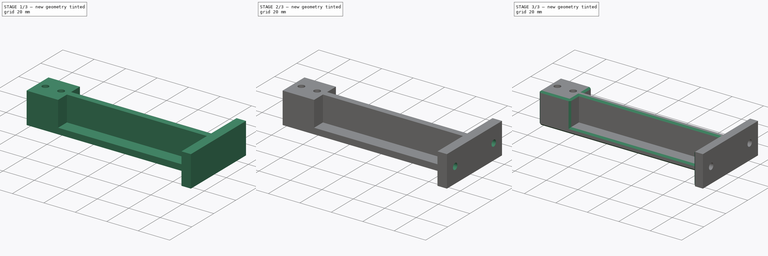
[diagram: build sequence overview — one tinted view per stage of 3, left to right]
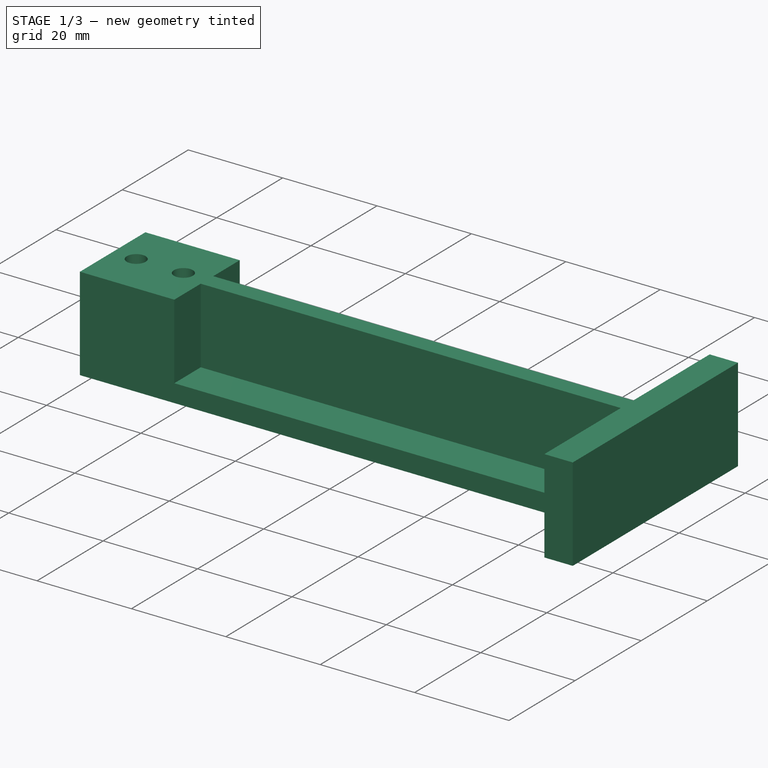
[diagram: stage 1 of 3 — iso view after this stage's code; geometry added in this stage tinted green]
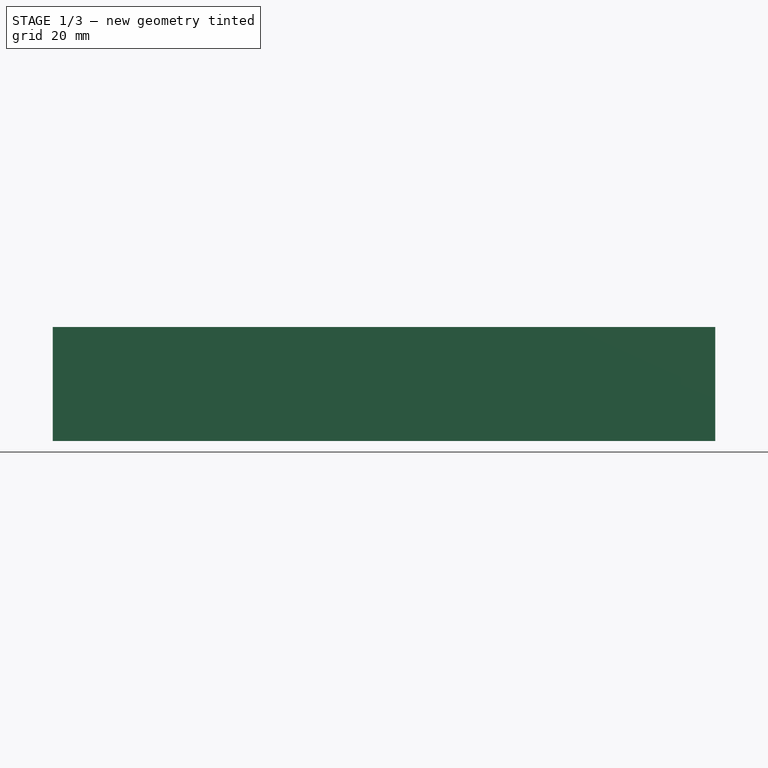
[diagram: stage 1 of 3 — front view after this stage's code; geometry added in this stage tinted green]
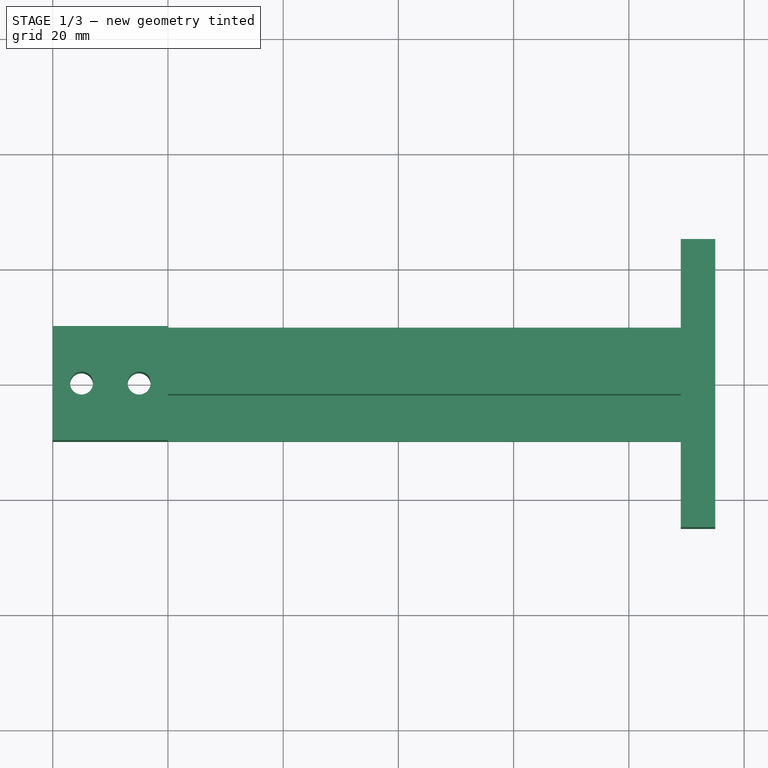
[diagram: stage 1 of 3 — top view after this stage's code; geometry added in this stage tinted green]
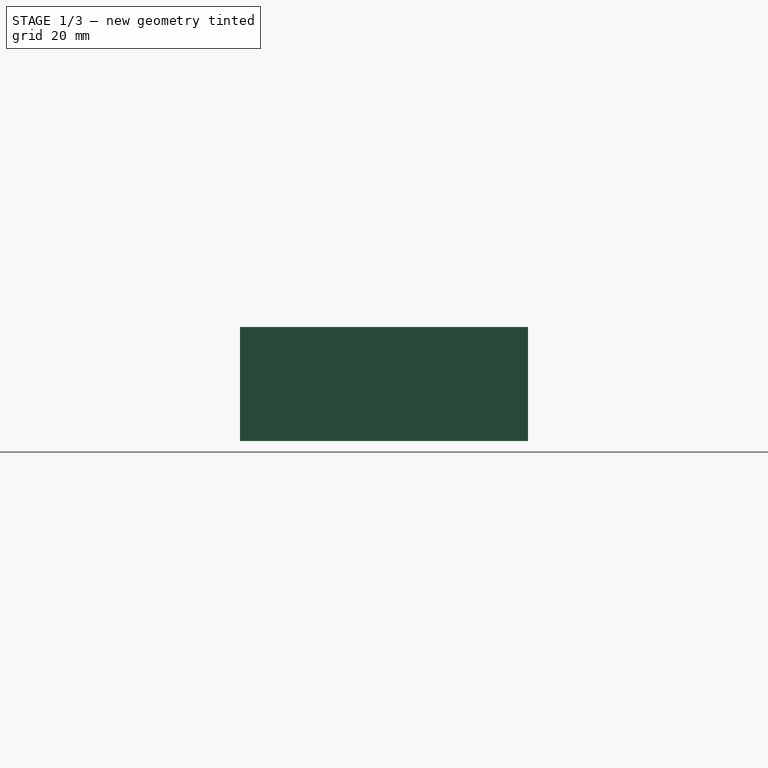
[diagram: stage 1 of 3 — right view after this stage's code; geometry added in this stage tinted green]
FCSTD DOCUMENT  (FreeCAD 0.18R16146 (Git))
Label: mountTopDeckFront
License: All rights reserved
LicenseURL: http://en.wikipedia.org/wiki/All_rights_reserved
objects: Sketcher::SketchObject×3, PartDesign::Pocket×2, PartDesign::Chamfer×2, PartDesign::Pad×1, PartDesign::Body×1
note: 12 computed .brp shape members not serialized (recipe doc carries the construction recipe); baked Part::Feature solids carry a one-line shape summary decoded from their .brp

FEATURE [Sketcher::SketchObject] Sketch
  MapMode = 5
  Support = -> [XY_Plane]
  sketch-geometry (10):
    g0: LineSegment StartX=0 StartY=9.9 StartZ=0 EndX=109 EndY=9.9 EndZ=0
    g1: LineSegment StartX=109 StartY=-9.9 StartZ=0 EndX=0 EndY=-9.9 EndZ=0
    g2: LineSegment StartX=0 StartY=-9.9 StartZ=0 EndX=0 EndY=9.9 EndZ=0
    g3: LineSegment StartX=109 StartY=25 StartZ=0 EndX=115 EndY=25 EndZ=0
    g4: LineSegment StartX=115 StartY=25 StartZ=0 EndX=115 EndY=-25 EndZ=0
    g5: LineSegment StartX=115 StartY=-25 StartZ=0 EndX=109 EndY=-25 EndZ=0
    g6: LineSegment StartX=109 StartY=-25 StartZ=0 EndX=109 EndY=-9.9 EndZ=0
    g7: LineSegment StartX=109 StartY=9.9 StartZ=0 EndX=109 EndY=25 EndZ=0
    g8: Circle CenterX=5 CenterY=0 CenterZ=0 NormalX=0 NormalY=0 NormalZ=1 AngleXU=0 Radius=2
    g9: Circle CenterX=15 CenterY=0 CenterZ=0 NormalX=0 NormalY=0 NormalZ=1 AngleXU=0 Radius=2
  constraints (29):
    c: Coincident(g1,g2)
    c: Coincident(g2,g0)
    c: Horizontal(g0)
    c: Horizontal(g1)
    c: Vertical(g2)
    c: Distance(g2) = 19.8
    c: Coincident(g3,g4)
    c: Coincident(g4,g5)
    c: Coincident(g5,g6)
    c: Coincident(g7,g3)
    c: Horizontal(g3)
    c: Horizontal(g5)
    c: Vertical(g4)
    c: Vertical(g6)
    c: Distance(g3) = 6
    c: Distance(g4) = 50
    c: DistanceY(g-1,g0) = 9.9
    c: PointOnObject(g1,g-2)
    c: DistanceY(g-1,g3) = 25
    c: Tangent(g6,g7)
    c: Coincident(g0,g7)
    c: Coincident(g1,g6)
    c: Distance(g0,g4) = 115
    c: PointOnObject(g8,g-1)
    c: Radius(g8) = 2
    c: Equal(g8,g9) = 2
    c: PointOnObject(g9,g-1)
    c: Distance(g9,g8) = 10
    c: Distance(g8,g2) = 5
FEATURE [PartDesign::Pad] Pad
  Length = 19.8
  Length2 = 100
  Profile = -> Sketch
  Type = 0
FEATURE [Sketcher::SketchObject] Sketch001
  ExternalGeometry = -> [Pad]
  MapMode = 5
  Placement = pos=(0,0,19.8) rot=(0,0,1;0rad)
  Support = -> [Pad]
  sketch-geometry (8):
    g0: LineSegment StartX=20 StartY=-1.9 StartZ=0 EndX=109 EndY=-1.9 EndZ=0
    g1: LineSegment StartX=109 StartY=-1.9 StartZ=0 EndX=109 EndY=-9.9 EndZ=0
    g2: LineSegment StartX=109 StartY=-9.9 StartZ=0 EndX=20 EndY=-9.9 EndZ=0
    g3: LineSegment StartX=20 StartY=-9.9 StartZ=0 EndX=20 EndY=-1.9 EndZ=0
    g4: LineSegment StartX=20 StartY=1.9 StartZ=0 EndX=109 EndY=1.9 EndZ=0
    g5: LineSegment StartX=109 StartY=1.9 StartZ=0 EndX=109 EndY=9.9 EndZ=0
    g6: LineSegment StartX=109 StartY=9.9 StartZ=0 EndX=20 EndY=9.9 EndZ=0
    g7: LineSegment StartX=20 StartY=9.9 StartZ=0 EndX=20 EndY=1.9 EndZ=0
  constraints (22):
    c: Coincident(g0,g1)
    c: Coincident(g1,g2)
    c: Coincident(g2,g3)
    c: Coincident(g3,g0)
    c: Horizontal(g0)
    c: Horizontal(g2)
    c: Vertical(g1)
    c: Vertical(g3)
    c: PointOnObject(g2,g-4)
    c: Distance(g-1,g3) = 20
    c: Distance(g0,g-5) = 6
    c: Distance(g3) = 8
    c: Coincident(g4,g5)
    c: Coincident(g5,g6)
    c: Coincident(g6,g7)
    c: Coincident(g7,g4)
    c: Horizontal(g4)
    c: Horizontal(g6)
    c: Distance(g7) = 8
    c: Tangent(g7,g3)
    c: PointOnObject(g6,g-3)
    c: Tangent(g5,g1)
FEATURE [PartDesign::Pocket] Pocket
  BaseFeature = -> Pad
  Length = 16
  Length2 = 100
  Profile = -> Sketch001
  Type = 0
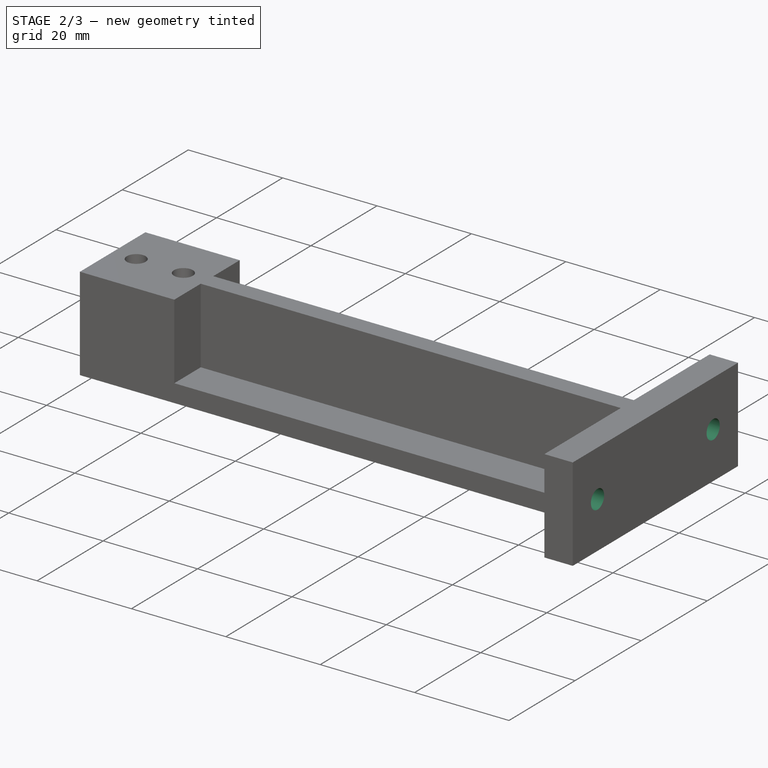
[diagram: stage 2 of 3 — iso view after this stage's code; geometry added in this stage tinted green]
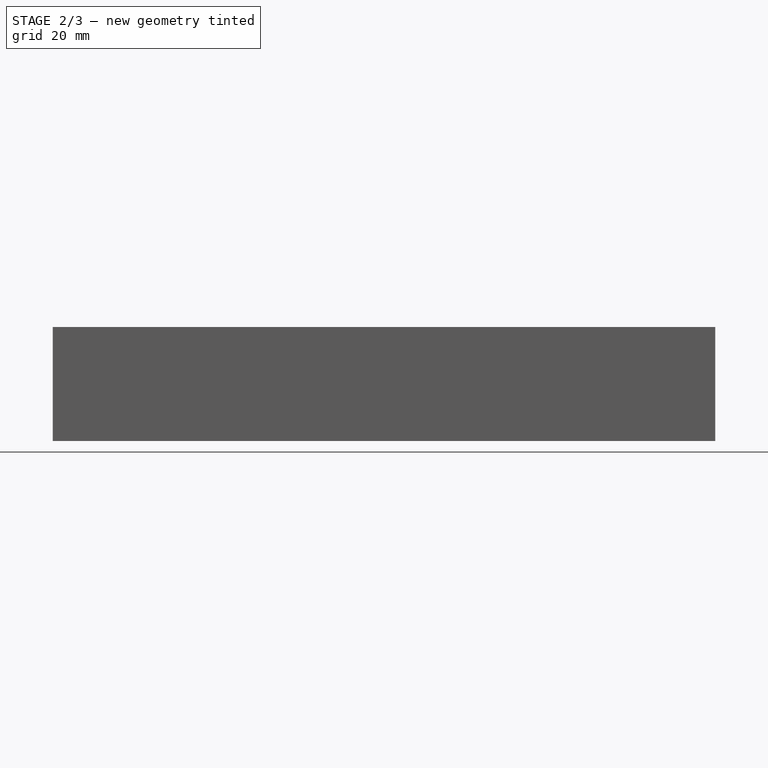
[diagram: stage 2 of 3 — front view after this stage's code; geometry added in this stage tinted green]
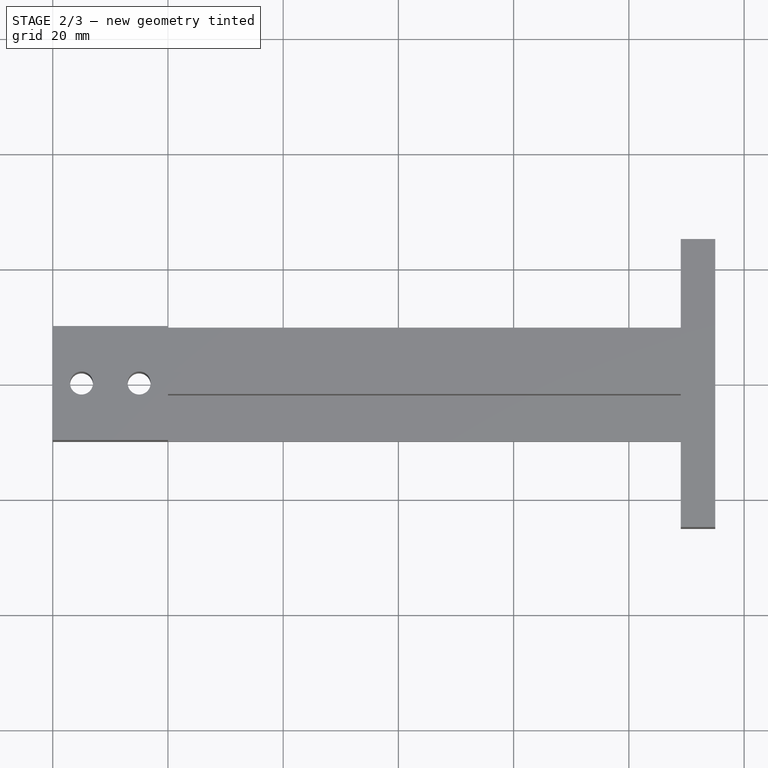
[diagram: stage 2 of 3 — top view after this stage's code; geometry added in this stage tinted green]
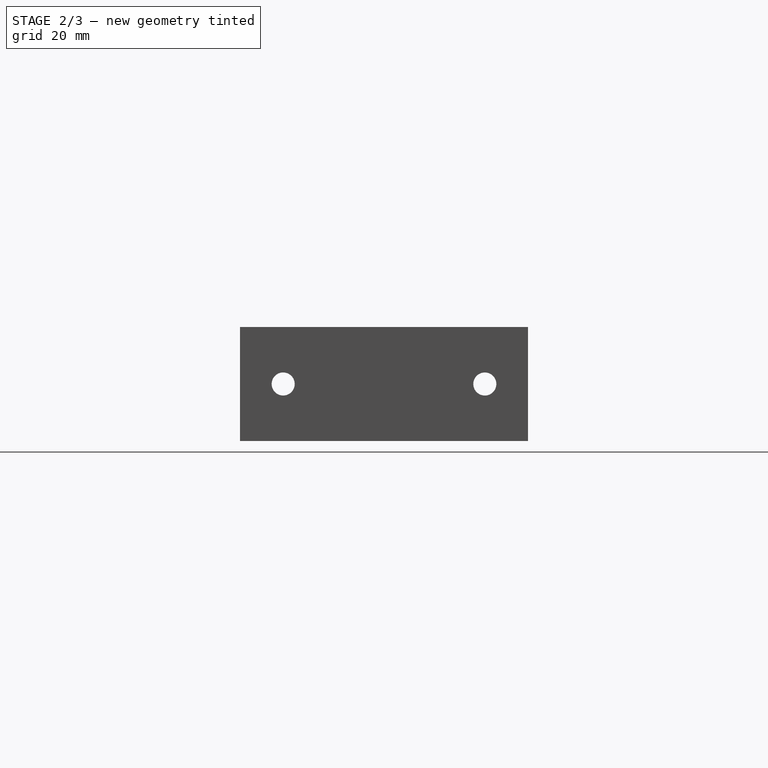
[diagram: stage 2 of 3 — right view after this stage's code; geometry added in this stage tinted green]
FEATURE [Sketcher::SketchObject] Sketch002
  ExternalGeometry = -> [Pocket]
  MapMode = 5
  Placement = pos=(115,0,0) rot=(0.57735,0.57735,0.57735;2.0944rad)
  Support = -> [Pocket]
  sketch-geometry (2):
    g0: Circle CenterX=-17.5 CenterY=9.9 CenterZ=0 NormalX=0 NormalY=0 NormalZ=1 AngleXU=0 Radius=2
    g1: Circle CenterX=17.5 CenterY=9.9 CenterZ=0 NormalX=0 NormalY=0 NormalZ=1 AngleXU=0 Radius=2
  constraints (6):
    c: Radius(g0) = 2
    c: Distance(g0,g-3) = 7.5
    c: DistanceY(g-1,g0) = 9.9
    c: Radius(g1) = 2
    c: Distance(g1,g-4) = 7.5
    c: DistanceY(g-1,g1) = 9.9
FEATURE [PartDesign::Pocket] Pocket001
  BaseFeature = -> Pocket
  Length = 5
  Length2 = 100
  Profile = -> Sketch002
  Type = 1
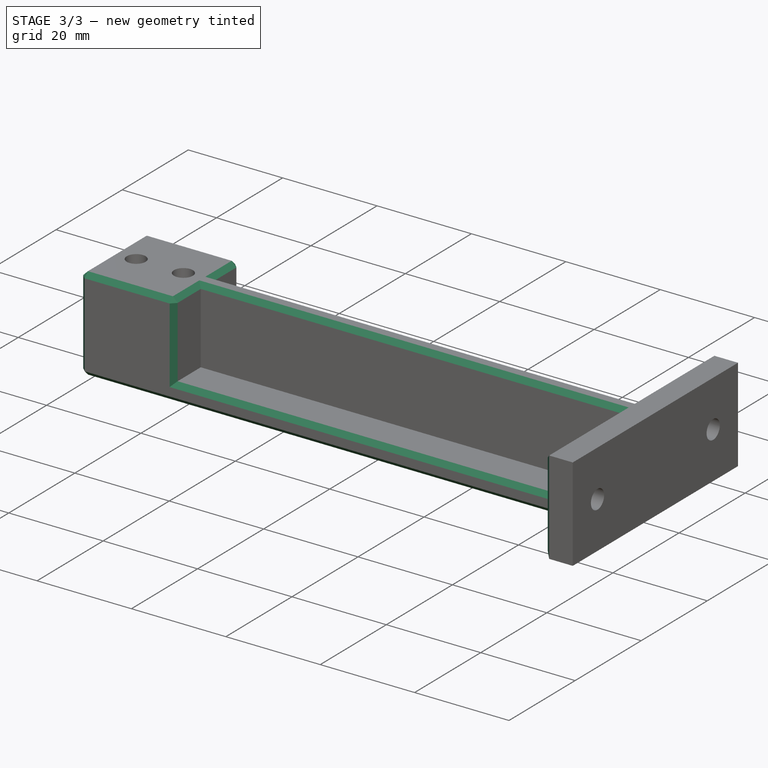
[diagram: stage 3 of 3 — iso view after this stage's code; geometry added in this stage tinted green]
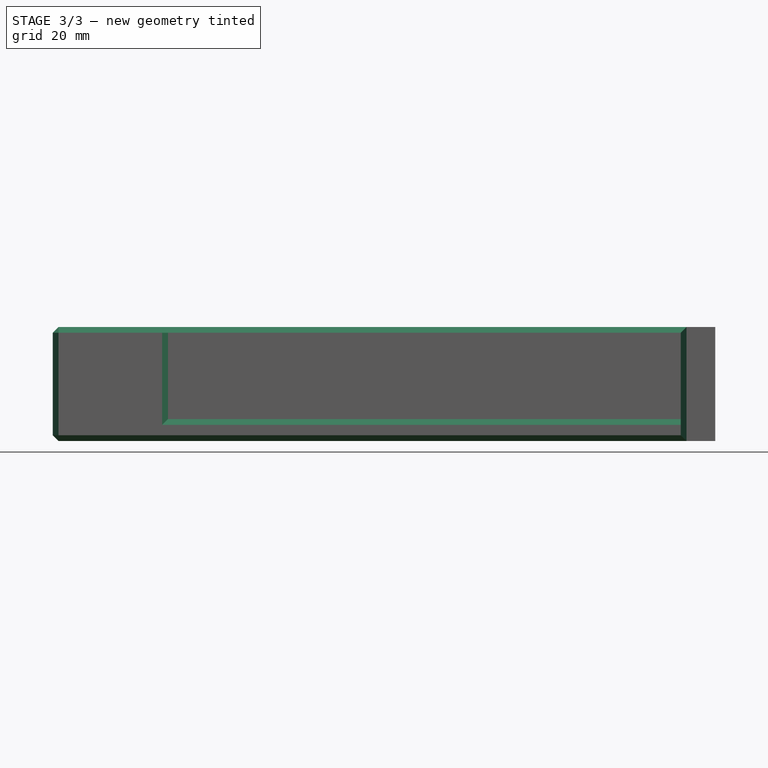
[diagram: stage 3 of 3 — front view after this stage's code; geometry added in this stage tinted green]
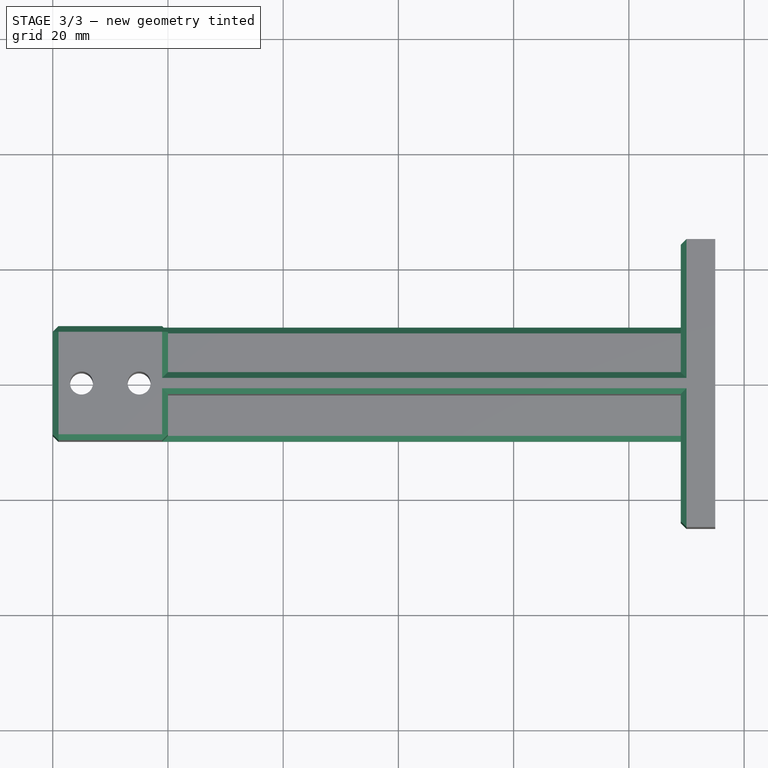
[diagram: stage 3 of 3 — top view after this stage's code; geometry added in this stage tinted green]
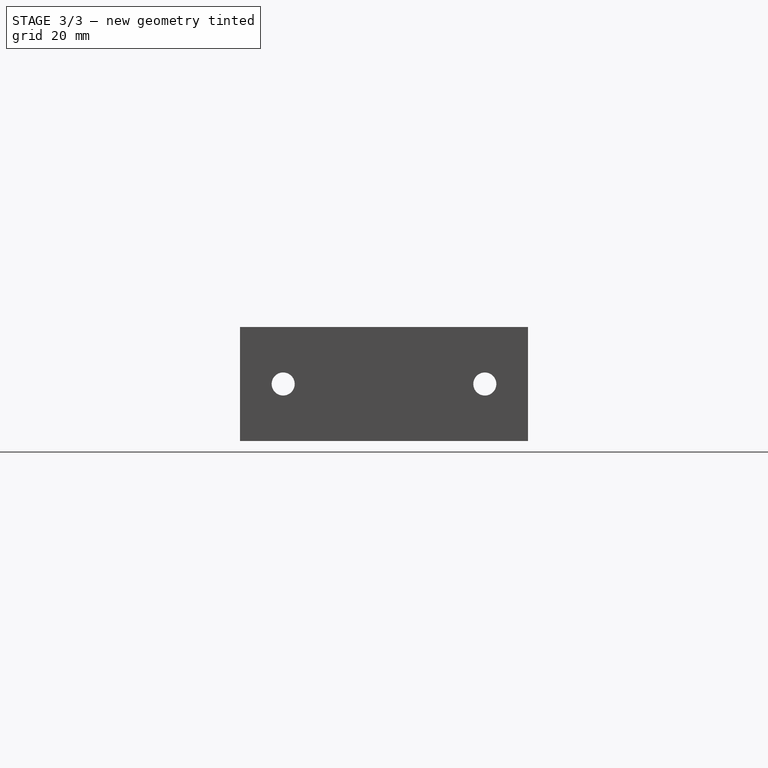
[diagram: stage 3 of 3 — right view after this stage's code; geometry added in this stage tinted green]
FEATURE [PartDesign::Chamfer] Chamfer
  Base = -> Pocket001 [Edge46,Edge19]
  BaseFeature = -> Pocket001
  Size = 2
FEATURE [PartDesign::Chamfer] Chamfer001
  Base = -> Chamfer [Edge44,Edge13,Edge27,Edge19,Edge9,Edge18,Edge10,Edge52,Edge51,Edge28,Edge29,Edge36,Edge12,Edge11,Edge30,Edge35,Edge17,Edge3,Edge32,Edge6,Edge47,Edge5]
  BaseFeature = -> Chamfer
  Size = 1
FEATURE [PartDesign::Body] Body
  Group = -> [Sketch,Pad,Sketch001,Pocket,Sketch002,Pocket001,Chamfer,Chamfer001]
  Origin = -> Origin
  Tip = -> Chamfer001
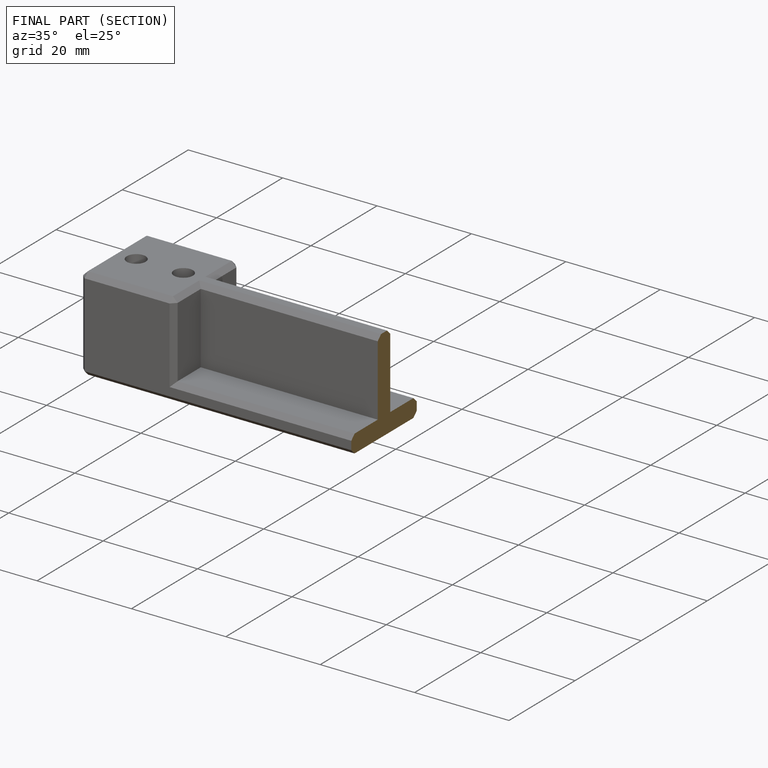
[diagram: finished part — half-section view (interior)]
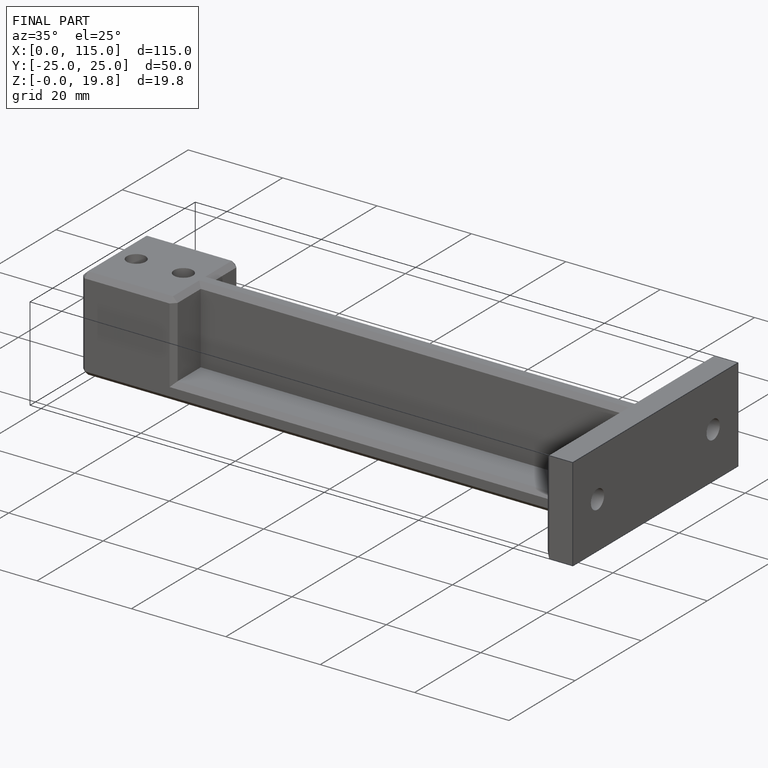
[diagram: finished part — iso view with bounding-box wireframe]
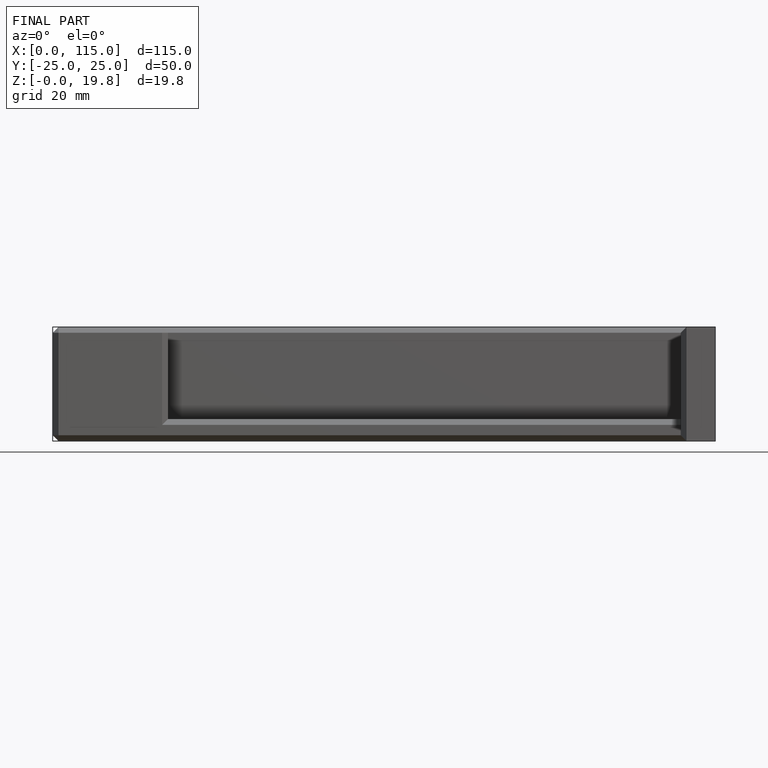
[diagram: finished part — front view with bounding-box wireframe]
